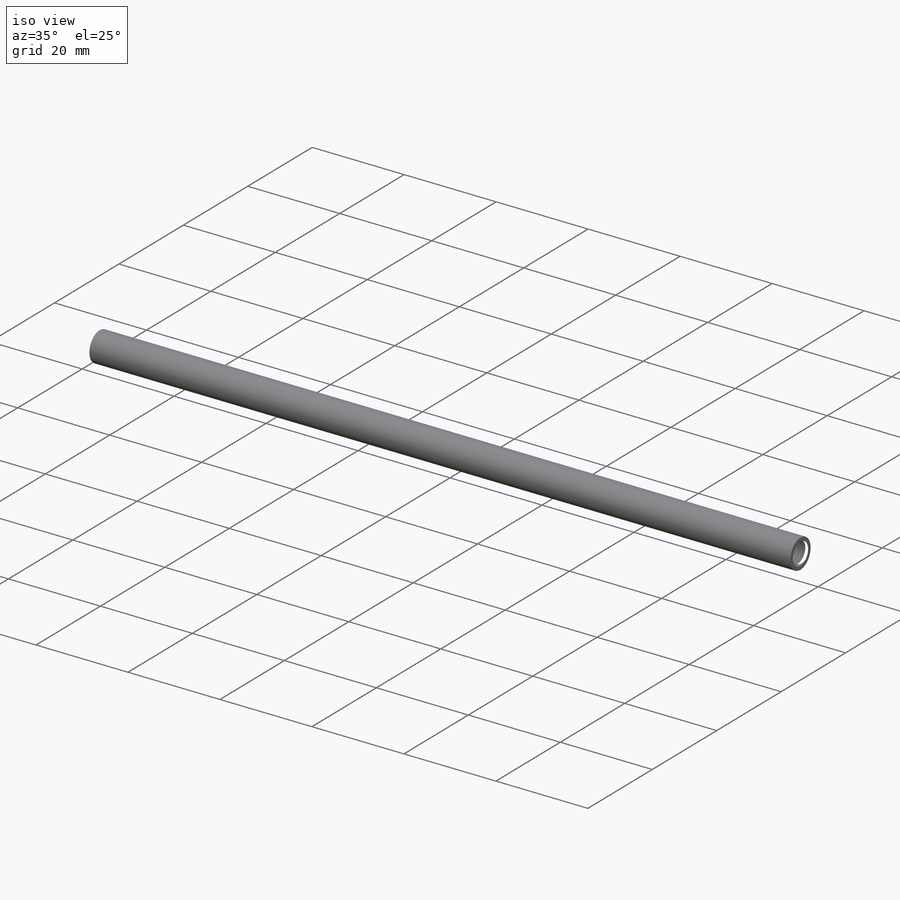
[diagram: iso view]
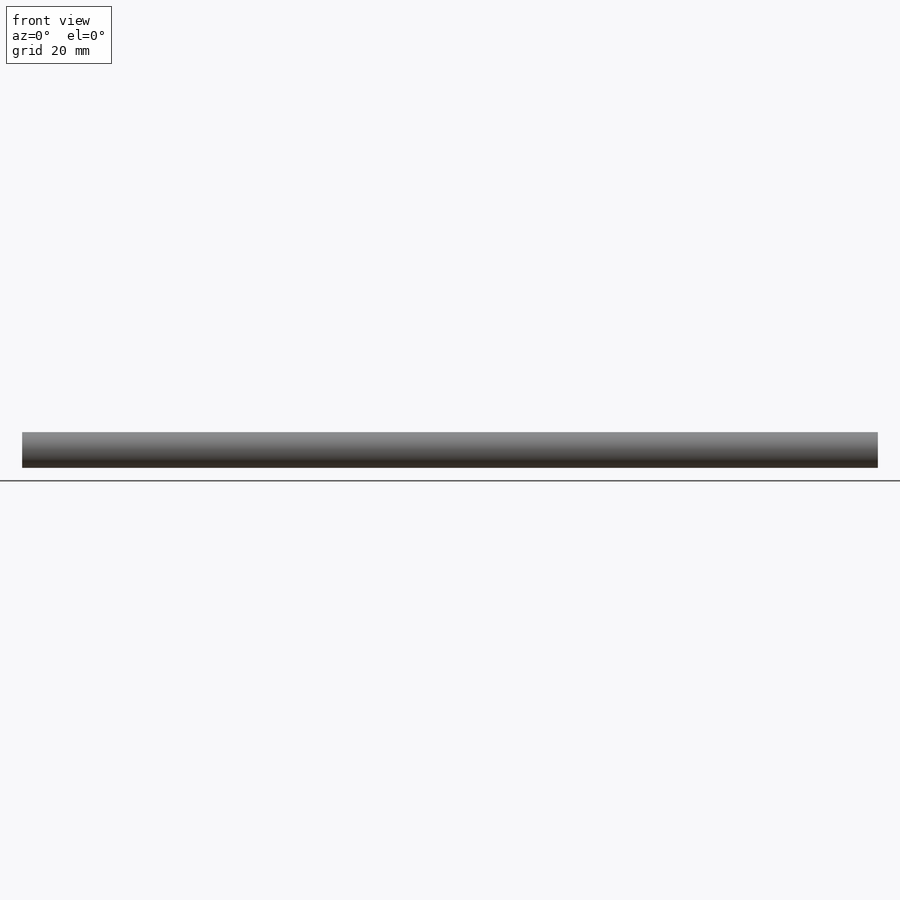
[diagram: front view]
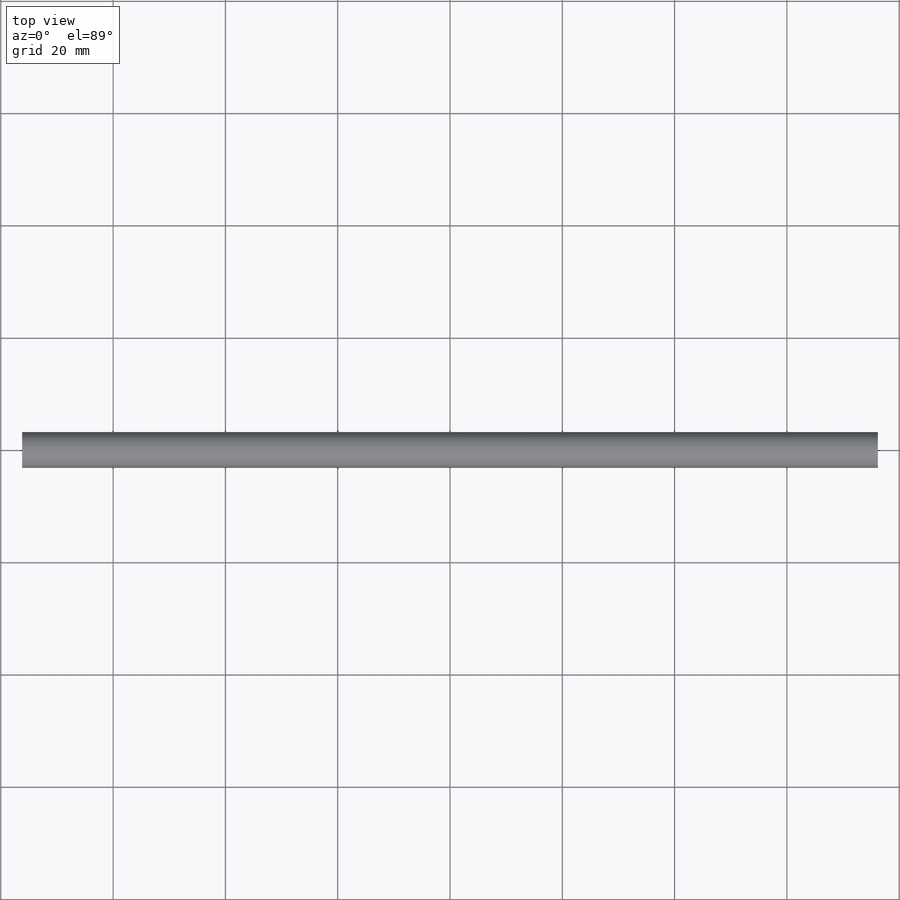
[diagram: top view]
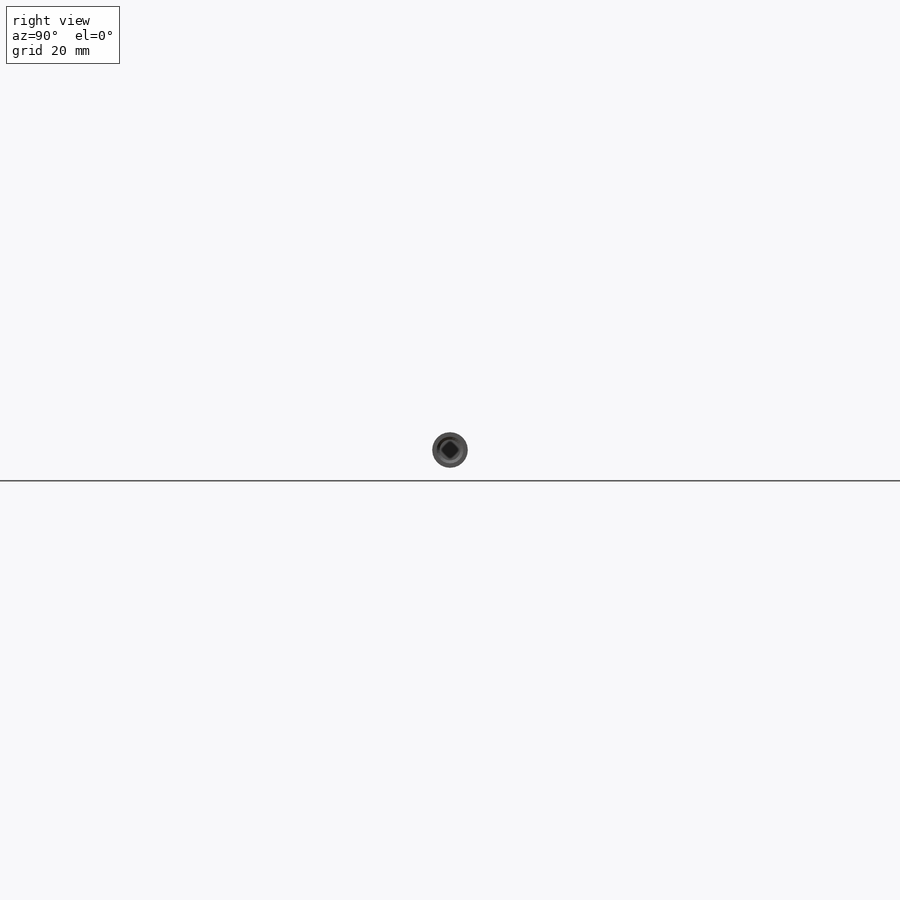
[diagram: right view]
SOLIDWORKS PART (.sldprt)
format: sldprt  version: not decoded by parser v0  size: 1,165,824 bytes
history: native  units: mm
features: sketch x8, extrude x2, cut_extrude x2, material x1, plane x1, helix x1, sweep x1, pattern_circular x1, boolean_combine x1 (+11 scaffold rows collapsed)
feature tree (29):
  scaffold x11  (default folders/planes/origin — collapsed)
  material  "Alloy Steel"
  sketch  "Sketch1"  dims[Length=152.4mm Thread Lenght=41.275mm D1=19.05mm Thread Size=4.7625mm Rod OD=6.35mm Thread Length=19.05mm D2=114.3mm D3=38.1mm D4=38.1mm D5=6.35mm]
  plane  "Plane1"
  sketch  "Sketch2"
  extrude  "Extrude1"  [1 undecoded]
  sketch  "Sketch3"  dims[D1=0.0mm]
  helix  "Helix/Spiral1"  Pitch=19.84375mm pitch=0.79375mm
  sketch  "Sketch4"  dims[c1.D1=~2.21321mm c2.D1=60.0deg c2.D2=~0.099219mm c2.D3=~0.396875mm]
  sweep  "Cut-Sweep1"
  sketch  "Sketch5"
  pattern_circular  "CirPattern1"  Count=2 Angle=180deg
  sketch  "Sketch7"
  extrude  "Extrude3"  [1 undecoded]
  boolean_combine  "Combine1"
  sketch  "Sketch8"
  cut_extrude  "Extrude4"  [1 undecoded]
  sketch  "Sketch9"
  cut_extrude  "Extrude5"  [1 undecoded]
decode coverage: 5 of 16 modeling features carry decoded parameters
note: ~ marks probable driven/reference dimensions
note: 4 parameter values undecoded
summary: no parameter record found for 4 features
note: suppression state not decoded; provenance and decode notes live in map.json
